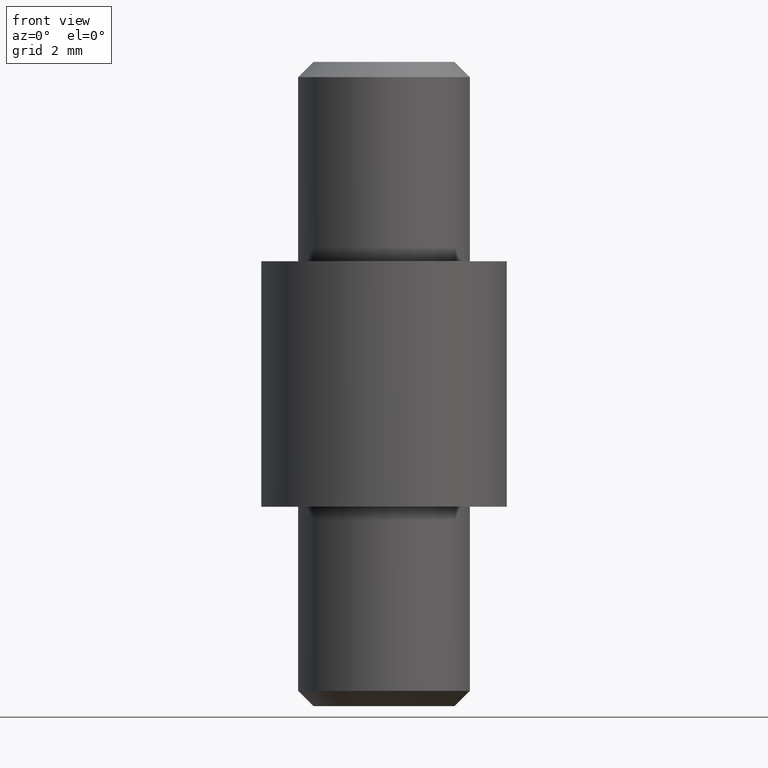
[diagram: clean part render]
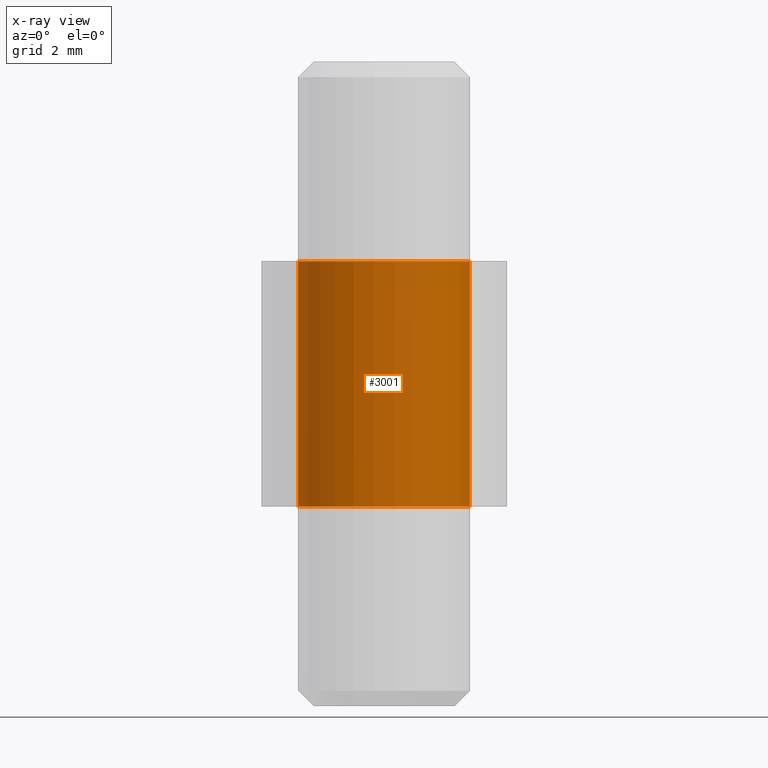
[diagram: x-ray — body ghosted, one internal face saturated and labeled with its STEP entity id]
A machine part, front view, then the same camera in x-ray: the body is ghosted and one INTERNAL B-rep face — a face not visible from any outside direction — is saturated and labeled: STEP entity #3001.
In plain terms, the highlighted cylindrical surface (partial cylindrical patch) has radius 2.8 mm, axis along (-0, -0, -1).
Its self-contained STEP definition (entity closure, byte-faithful):
#16 = ORIENTED_EDGE ( 'NONE', *, *, #8848, .T. ) ;
#517 = LINE ( 'NONE', #11022, #651 ) ;
#648 = CARTESIAN_POINT ( 'NONE',  ( 2.799999999999999800, 3.429011037612588800E-016, 8.000000000000000000 ) ) ;
#651 = VECTOR ( 'NONE', #1995, 1000.000000000000000 ) ;
#749 = CARTESIAN_POINT ( 'NONE',  ( -2.799999999999999800, 0.0000000000000000000, 8.000000000000000000 ) ) ;
#922 = VERTEX_POINT ( 'NONE', #8464 ) ;
#1313 = CARTESIAN_POINT ( 'NONE',  ( 0.0000000000000000000, 0.0000000000000000000, 8.000000000000000000 ) ) ;
#1394 = CARTESIAN_POINT ( 'NONE',  ( -2.799999999999999800, 0.0000000000000000000, 8.000000000000000000 ) ) ;
#1660 = ORIENTED_EDGE ( 'NONE', *, *, #7612, .T. ) ;
#1717 = DIRECTION ( 'NONE',  ( 1.000000000000000000, 0.0000000000000000000, 0.0000000000000000000 ) ) ;
#1995 = DIRECTION ( 'NONE',  ( -0.0000000000000000000, -0.0000000000000000000, -1.000000000000000000 ) ) ;
#2711 = CARTESIAN_POINT ( 'NONE',  ( 2.799999999999999800, 3.429011037612588800E-016, 0.0000000000000000000 ) ) ;
#2719 = ORIENTED_EDGE ( 'NONE', *, *, #4933, .F. ) ;
#2815 = VERTEX_POINT ( 'NONE', #2711 ) ;
#3001 = ADVANCED_FACE ( 'NONE', ( #8342 ), #6482, .F. ) ;
#3094 = VERTEX_POINT ( 'NONE', #749 ) ;
#3232 = CARTESIAN_POINT ( 'NONE',  ( 0.0000000000000000000, 0.0000000000000000000, 8.000000000000000000 ) ) ;
#3391 = DIRECTION ( 'NONE',  ( 0.0000000000000000000, 0.0000000000000000000, 1.000000000000000000 ) ) ;
#3934 = AXIS2_PLACEMENT_3D ( 'NONE', #8797, #3391, #1717 ) ;
#3969 = ORIENTED_EDGE ( 'NONE', *, *, #9500, .F. ) ;
#4933 = EDGE_CURVE ( 'NONE', #3094, #922, #6668, .T. ) ;
#6010 = CIRCLE ( 'NONE', #9090, 2.799999999999999800 ) ;
#6255 = CIRCLE ( 'NONE', #3934, 2.799999999999999800 ) ;
#6482 = CYLINDRICAL_SURFACE ( 'NONE', #9367, 2.799999999999999800 ) ;
#6668 = LINE ( 'NONE', #1394, #10834 ) ;
#7587 = DIRECTION ( 'NONE',  ( -1.000000000000000000, 0.0000000000000000000, 0.0000000000000000000 ) ) ;
#7612 = EDGE_CURVE ( 'NONE', #3094, #11053, #6010, .T. ) ;
#8342 = FACE_OUTER_BOUND ( 'NONE', #9735, .T. ) ;
#8464 = CARTESIAN_POINT ( 'NONE',  ( -2.799999999999999800, 0.0000000000000000000, 0.0000000000000000000 ) ) ;
#8624 = DIRECTION ( 'NONE',  ( 1.000000000000000000, 0.0000000000000000000, 0.0000000000000000000 ) ) ;
#8797 = CARTESIAN_POINT ( 'NONE',  ( 0.0000000000000000000, 0.0000000000000000000, 0.0000000000000000000 ) ) ;
#8848 = EDGE_CURVE ( 'NONE', #11053, #2815, #517, .T. ) ;
#9090 = AXIS2_PLACEMENT_3D ( 'NONE', #3232, #10368, #8624 ) ;
#9367 = AXIS2_PLACEMENT_3D ( 'NONE', #1313, #10503, #7587 ) ;
#9500 = EDGE_CURVE ( 'NONE', #922, #2815, #6255, .T. ) ;
#9735 = EDGE_LOOP ( 'NONE', ( #1660, #16, #3969, #2719 ) ) ;
#10368 = DIRECTION ( 'NONE',  ( 0.0000000000000000000, 0.0000000000000000000, 1.000000000000000000 ) ) ;
#10503 = DIRECTION ( 'NONE',  ( -0.0000000000000000000, -0.0000000000000000000, -1.000000000000000000 ) ) ;
#10834 = VECTOR ( 'NONE', #11323, 1000.000000000000000 ) ;
#11022 = CARTESIAN_POINT ( 'NONE',  ( 2.799999999999999800, 3.429011037612588800E-016, 8.000000000000000000 ) ) ;
#11053 = VERTEX_POINT ( 'NONE', #648 ) ;
#11323 = DIRECTION ( 'NONE',  ( -0.0000000000000000000, -0.0000000000000000000, -1.000000000000000000 ) ) ;